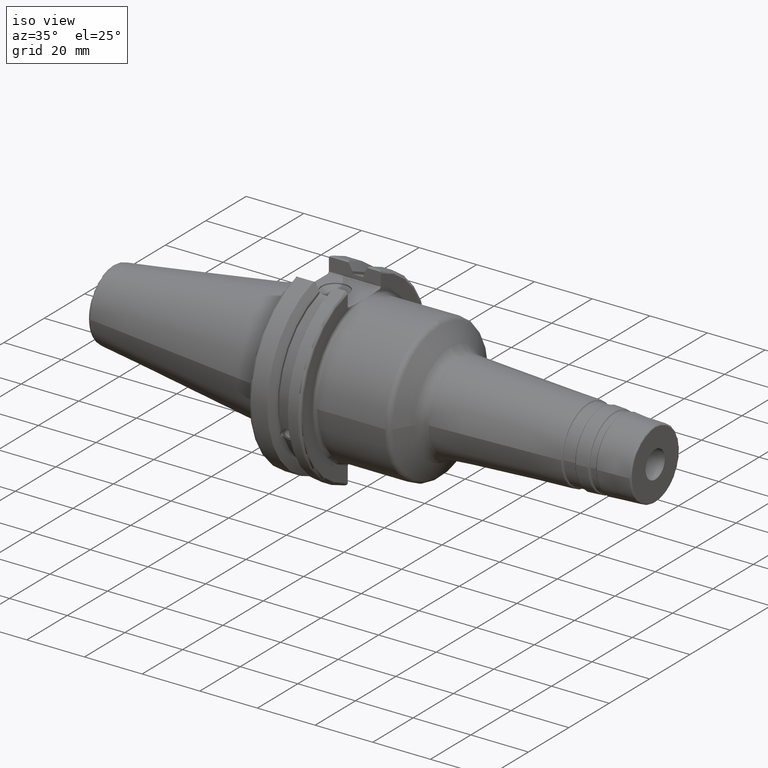
[diagram: clean part render]
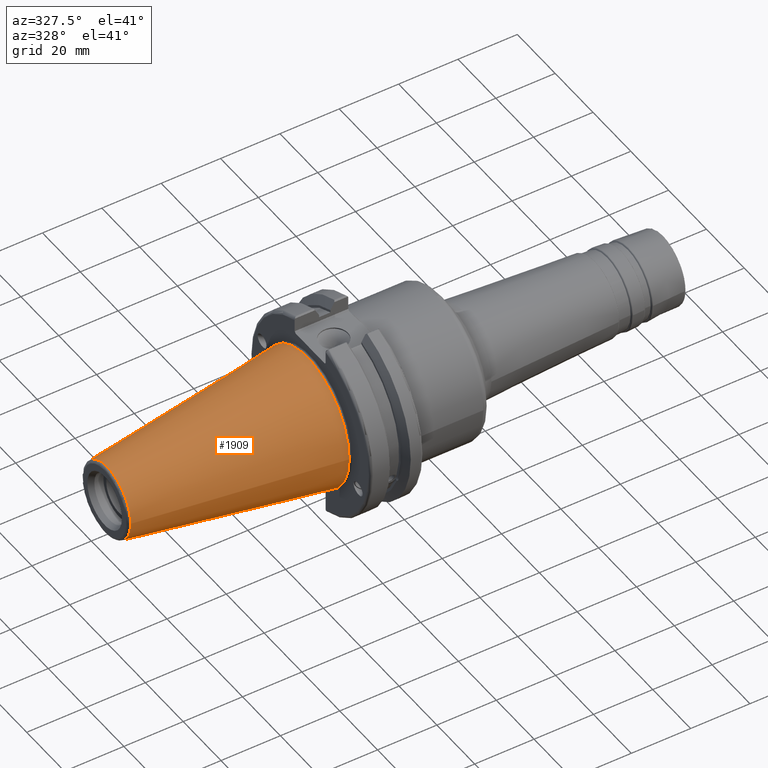
[diagram: tour spotlight — one face highlighted and labeled with its STEP entity id]
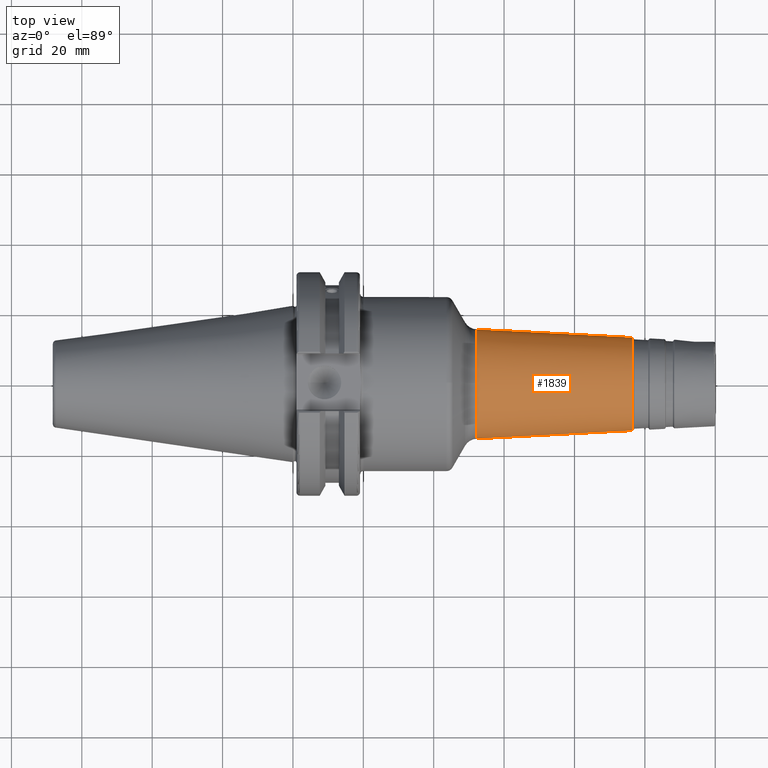
[diagram: tour spotlight — one face highlighted and labeled with its STEP entity id]
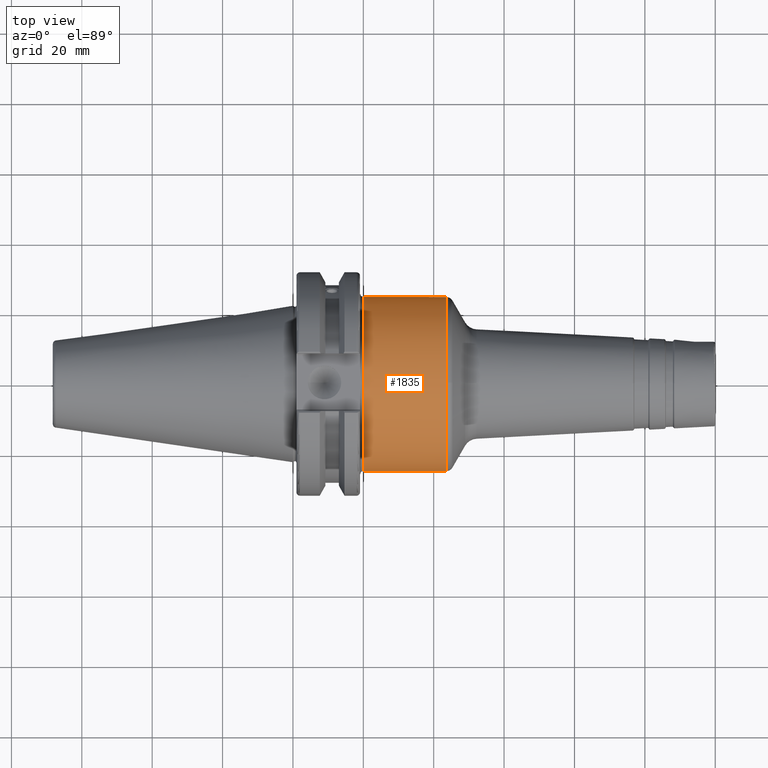
[diagram: tour spotlight — one face highlighted and labeled with its STEP entity id]
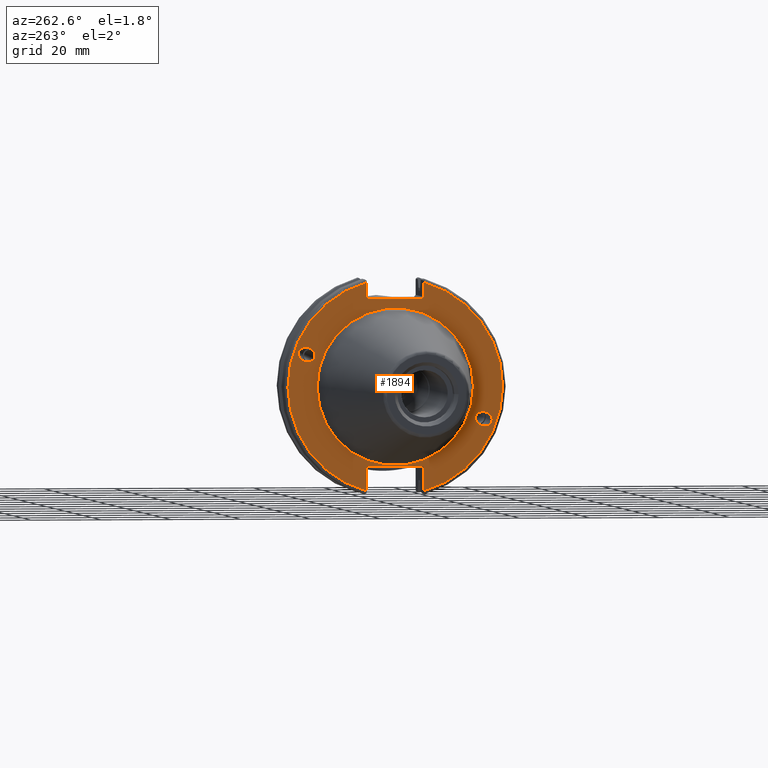
[diagram: tour spotlight — one face highlighted and labeled with its STEP entity id]
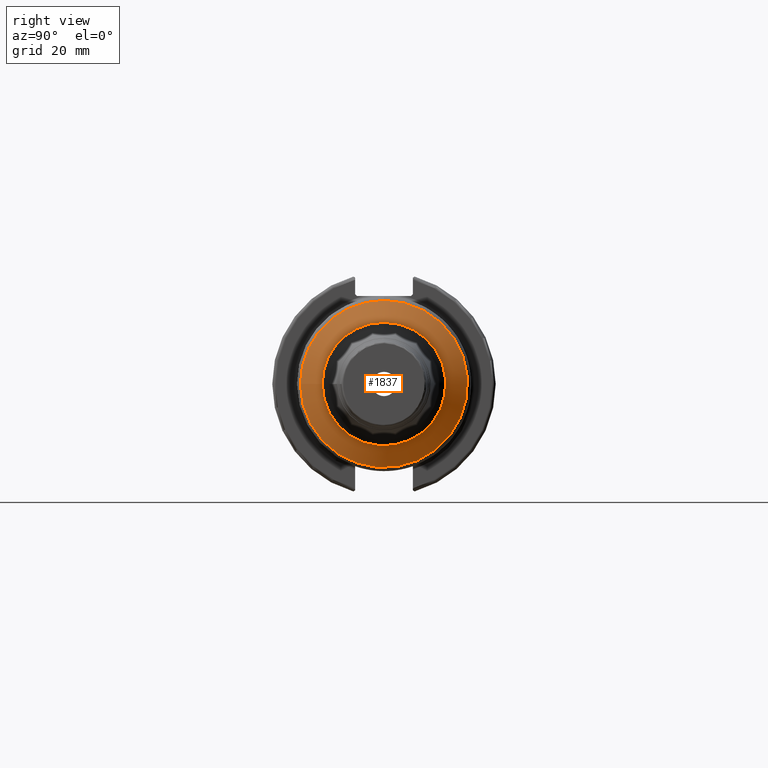
[diagram: tour spotlight — one face highlighted and labeled with its STEP entity id]
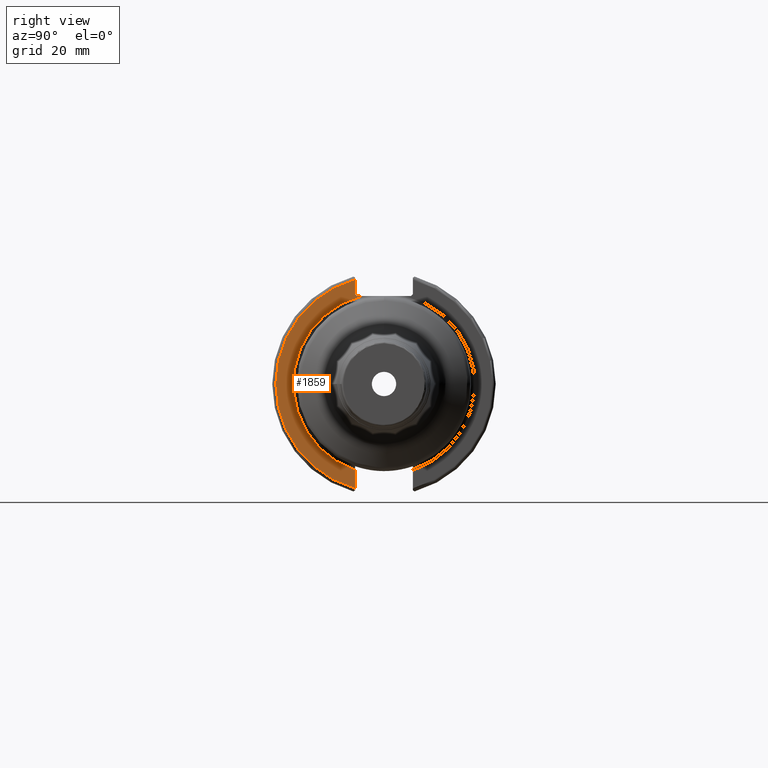
[diagram: tour spotlight — one face highlighted and labeled with its STEP entity id]
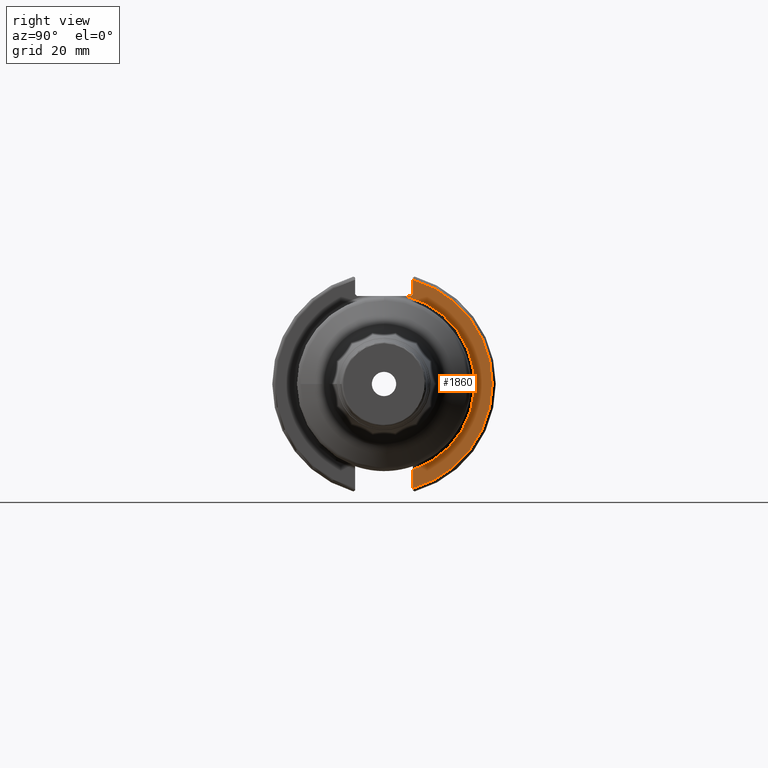
[diagram: tour spotlight — one face highlighted and labeled with its STEP entity id]
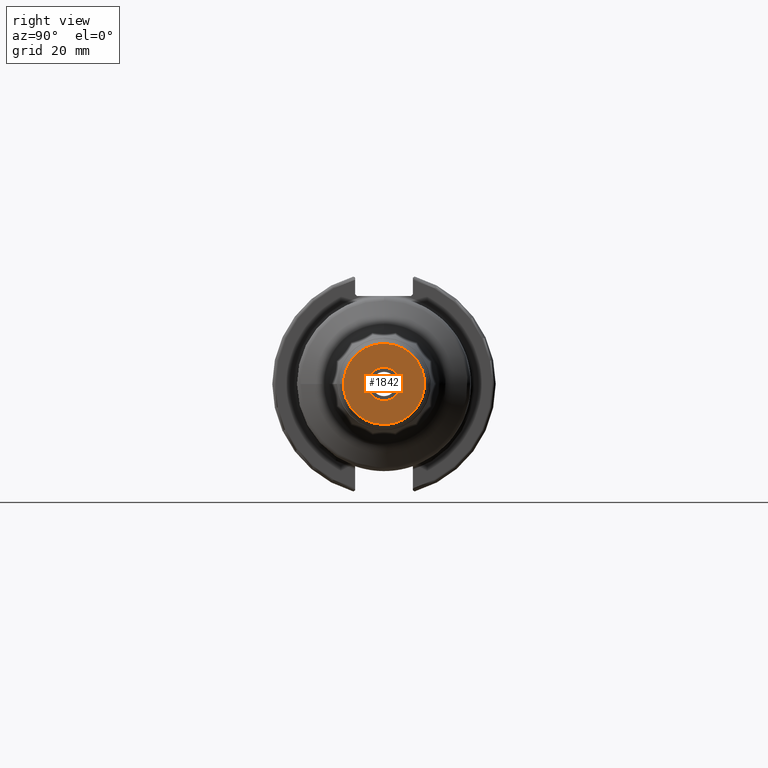
[diagram: tour spotlight — one face highlighted and labeled with its STEP entity id]
A machine part: a face-by-face anatomy tour. The part has 107 B-rep faces; the first image is the clean iso view, then the 8 largest visible faces are spotlighted one at a time (largest first), each with its STEP entity span.

Face 1 — auxiliary view, entity #1909. In plain terms, the highlighted conical surface has half-angle 8.297 deg.
Definition (entity closure, byte-faithful):
#264=FACE_OUTER_BOUND('',#384,.T.);
#384=EDGE_LOOP('',(#1681,#1682,#1683,#1684,#1685));
#496=LINE('',#3722,#594);
#594=VECTOR('',#2720,17.2484375);
#717=CIRCLE('',#2164,12.3966635780937);
#718=CIRCLE('',#2165,12.3966635780937);
#722=CIRCLE('',#2171,22.225);
#915=VERTEX_POINT('',#3709);
#916=VERTEX_POINT('',#3710);
#919=VERTEX_POINT('',#3720);
#1186=EDGE_CURVE('',#915,#916,#717,.T.);
#1187=EDGE_CURVE('',#916,#915,#718,.T.);
#1191=EDGE_CURVE('',#919,#919,#722,.T.);
#1192=EDGE_CURVE('',#919,#916,#496,.T.);
#1681=ORIENTED_EDGE('',*,*,#1191,.F.);
#1682=ORIENTED_EDGE('',*,*,#1192,.T.);
#1683=ORIENTED_EDGE('',*,*,#1186,.F.);
#1684=ORIENTED_EDGE('',*,*,#1187,.F.);
#1685=ORIENTED_EDGE('',*,*,#1192,.F.);
#1823=CONICAL_SURFACE('',#2170,17.2484375,0.144812498238939);
#1909=ADVANCED_FACE('',(#264),#1823,.T.);
#2164=AXIS2_PLACEMENT_3D('',#3711,#2704,#2705);
#2165=AXIS2_PLACEMENT_3D('',#3712,#2706,#2707);
#2170=AXIS2_PLACEMENT_3D('',#3719,#2716,#2717);
#2171=AXIS2_PLACEMENT_3D('',#3721,#2718,#2719);
#2704=DIRECTION('center_axis',(-1.,0.,0.));
#2705=DIRECTION('ref_axis',(0.,-1.,3.06161699786838E-17));
#2706=DIRECTION('center_axis',(-1.,0.,0.));
#2707=DIRECTION('ref_axis',(0.,-1.,3.06161699786838E-17));
#2716=DIRECTION('center_axis',(1.,0.,0.));
#2717=DIRECTION('ref_axis',(0.,1.,0.));
#2718=DIRECTION('center_axis',(1.,0.,0.));
#2719=DIRECTION('ref_axis',(0.,0.,-1.));
#2720=DIRECTION('',(-0.989532981063282,0.144306893071729,1.76724974695192E-17));
#3709=CARTESIAN_POINT('',(-67.3943068930717,-1.5181534371019E-15,12.3966635780937));
#3710=CARTESIAN_POINT('',(-67.3943068930718,-12.3966635780937,-1.5181534371019E-15));
#3711=CARTESIAN_POINT('Origin',(-67.3943068930717,0.,-1.89769179637738E-15));
#3712=CARTESIAN_POINT('Origin',(-67.3943068930717,0.,-1.89769179637738E-15));
#3719=CARTESIAN_POINT('Origin',(-34.125,0.,0.));
#3720=CARTESIAN_POINT('',(0.,-22.225,-2.72177751110499E-15));
#3721=CARTESIAN_POINT('Origin',(0.,0.,0.));
#3722=CARTESIAN_POINT('',(-34.125,-17.2484375,-2.11232437746682E-15));

Face 2 — top view, entity #1839. In plain terms, the highlighted conical surface has half-angle 3 deg.
Definition (entity closure, byte-faithful):
#194=FACE_OUTER_BOUND('',#303,.T.);
#303=EDGE_LOOP('',(#1275,#1276,#1277,#1278,#1279,#1280));
#422=LINE('',#2967,#520);
#520=VECTOR('',#2284,14.4434350517363);
#627=CIRCLE('',#1987,15.5548801268603);
#628=CIRCLE('',#1988,15.5548801268603);
#629=CIRCLE('',#1990,13.2304120250298);
#630=CIRCLE('',#1991,13.2304120250298);
#756=VERTEX_POINT('',#2958);
#757=VERTEX_POINT('',#2960);
#758=VERTEX_POINT('',#2964);
#759=VERTEX_POINT('',#2965);
#959=EDGE_CURVE('',#756,#757,#627,.T.);
#960=EDGE_CURVE('',#757,#756,#628,.T.);
#961=EDGE_CURVE('',#758,#759,#629,.T.);
#962=EDGE_CURVE('',#758,#757,#422,.T.);
#963=EDGE_CURVE('',#759,#758,#630,.T.);
#1275=ORIENTED_EDGE('',*,*,#961,.F.);
#1276=ORIENTED_EDGE('',*,*,#962,.T.);
#1277=ORIENTED_EDGE('',*,*,#959,.F.);
#1278=ORIENTED_EDGE('',*,*,#960,.F.);
#1279=ORIENTED_EDGE('',*,*,#962,.F.);
#1280=ORIENTED_EDGE('',*,*,#963,.F.);
#1809=CONICAL_SURFACE('',#1989,14.4434350517363,0.0523598775598296);
#1839=ADVANCED_FACE('',(#194),#1809,.T.);
#1987=AXIS2_PLACEMENT_3D('',#2961,#2276,#2277);
#1988=AXIS2_PLACEMENT_3D('',#2962,#2278,#2279);
#1989=AXIS2_PLACEMENT_3D('',#2963,#2280,#2281);
#1990=AXIS2_PLACEMENT_3D('',#2966,#2282,#2283);
#1991=AXIS2_PLACEMENT_3D('',#2968,#2285,#2286);
#2276=DIRECTION('center_axis',(-1.,0.,0.));
#2277=DIRECTION('ref_axis',(0.,-1.,3.06161699786838E-17));
#2278=DIRECTION('center_axis',(-1.,0.,0.));
#2279=DIRECTION('ref_axis',(0.,-1.,3.06161699786838E-17));
#2280=DIRECTION('center_axis',(-1.,0.,0.));
#2281=DIRECTION('ref_axis',(0.,1.,0.));
#2282=DIRECTION('center_axis',(1.,0.,0.));
#2283=DIRECTION('ref_axis',(0.,-1.,3.06161699786838E-17));
#2284=DIRECTION('',(-0.998629534754574,-0.0523359562429436,-6.40930612932368E-18));
#2285=DIRECTION('center_axis',(1.,0.,0.));
#2286=DIRECTION('ref_axis',(0.,-1.,3.06161699786838E-17));
#2958=CARTESIAN_POINT('',(52.1688463908891,-1.90492341584803E-15,15.5548801268603));
#2960=CARTESIAN_POINT('',(52.1688463908891,-15.5548801268603,-1.90492341584803E-15));
#2961=CARTESIAN_POINT('Origin',(52.1688463908891,0.,-2.38115426981004E-15));
#2962=CARTESIAN_POINT('Origin',(52.1688463908891,0.,-2.38115426981004E-15));
#2963=CARTESIAN_POINT('Origin',(73.3764817902328,0.,0.));
#2964=CARTESIAN_POINT('',(96.522339968181,-13.2304120250298,-1.62025817378535E-15));
#2965=CARTESIAN_POINT('',(96.522339968181,-1.62025817378534E-15,13.2304120250298));
#2966=CARTESIAN_POINT('Origin',(96.522339968181,0.,-2.02532271723168E-15));
#2967=CARTESIAN_POINT('',(73.3764817902328,-14.4434350517363,-1.76881065048016E-15));
#2968=CARTESIAN_POINT('Origin',(96.522339968181,0.,-2.02532271723168E-15));

Face 3 — top view, entity #1835. In plain terms, the highlighted cylindrical surface (bore or boss wall) has radius 24.75 mm, axis along (1, 0, 0).
Definition (entity closure, byte-faithful):
#122=B_SPLINE_CURVE_WITH_KNOTS('',3,(#2913,#2914,#2915,#2916,#2917,#2918,
#2919,#2920,#2921,#2922,#2923,#2924,#2925,#2926,#2927,#2928,#2929,#2930),
 .UNSPECIFIED.,.F.,.F.,(4,2,2,2,2,2,2,2,4),(-2.48845986202559,-2.17733241913027,
-1.86620497623495,-1.55521745362387,-1.24422993101279,-0.933242408401712,
-0.622254885790633,-0.311127442895316,0.),.UNSPECIFIED.);
#158=CYLINDRICAL_SURFACE('',#1973,24.75);
#190=FACE_OUTER_BOUND('',#299,.T.);
#299=EDGE_LOOP('',(#1250,#1251,#1252,#1253,#1254,#1255,#1256));
#420=LINE('',#2941,#518);
#518=VECTOR('',#2250,24.75);
#617=CIRCLE('',#1974,24.75);
#618=CIRCLE('',#1975,24.75);
#619=CIRCLE('',#1976,24.75);
#620=CIRCLE('',#1977,24.75);
#745=VERTEX_POINT('',#2911);
#746=VERTEX_POINT('',#2912);
#749=VERTEX_POINT('',#2937);
#750=VERTEX_POINT('',#2938);
#751=VERTEX_POINT('',#2940);
#943=EDGE_CURVE('',#745,#746,#122,.T.);
#947=EDGE_CURVE('',#749,#750,#617,.T.);
#948=EDGE_CURVE('',#749,#751,#420,.T.);
#949=EDGE_CURVE('',#745,#751,#618,.T.);
#950=EDGE_CURVE('',#751,#746,#619,.T.);
#951=EDGE_CURVE('',#750,#749,#620,.T.);
#1250=ORIENTED_EDGE('',*,*,#947,.F.);
#1251=ORIENTED_EDGE('',*,*,#948,.T.);
#1252=ORIENTED_EDGE('',*,*,#949,.F.);
#1253=ORIENTED_EDGE('',*,*,#943,.T.);
#1254=ORIENTED_EDGE('',*,*,#950,.F.);
#1255=ORIENTED_EDGE('',*,*,#948,.F.);
#1256=ORIENTED_EDGE('',*,*,#951,.F.);
#1835=ADVANCED_FACE('',(#190),#158,.T.);
#1973=AXIS2_PLACEMENT_3D('',#2936,#2246,#2247);
#1974=AXIS2_PLACEMENT_3D('',#2939,#2248,#2249);
#1975=AXIS2_PLACEMENT_3D('',#2942,#2251,#2252);
#1976=AXIS2_PLACEMENT_3D('',#2943,#2253,#2254);
#1977=AXIS2_PLACEMENT_3D('',#2944,#2255,#2256);
#2246=DIRECTION('center_axis',(1.,0.,0.));
#2247=DIRECTION('ref_axis',(0.,1.,0.));
#2248=DIRECTION('center_axis',(1.,0.,0.));
#2249=DIRECTION('ref_axis',(0.,-1.,1.83697019872103E-16));
#2250=DIRECTION('',(-1.,0.,0.));
#2251=DIRECTION('center_axis',(-1.,0.,0.));
#2252=DIRECTION('ref_axis',(0.,6.12323399573677E-17,1.));
#2253=DIRECTION('center_axis',(-1.,0.,0.));
#2254=DIRECTION('ref_axis',(0.,6.12323399573677E-17,1.));
#2255=DIRECTION('center_axis',(1.,0.,0.));
#2256=DIRECTION('ref_axis',(0.,-1.,1.83697019872103E-16));
#2911=CARTESIAN_POINT('',(20.05,-8.19,-23.3556502799644));
#2912=CARTESIAN_POINT('',(20.05,8.18999999999999,-23.3556502799644));
#2913=CARTESIAN_POINT('Ctrl Pts',(20.05,-8.19,-23.3556502799644));
#2914=CARTESIAN_POINT('Ctrl Pts',(21.0870914763177,-8.19,-23.3556502799644));
#2915=CARTESIAN_POINT('Ctrl Pts',(22.1874172494719,-7.98112852617488,-23.4319820145953));
#2916=CARTESIAN_POINT('Ctrl Pts',(24.2026226557734,-7.14301766428651,-23.7009173446597));
#2917=CARTESIAN_POINT('Ctrl Pts',(25.1182638848105,-6.51414519102515,-23.8889373554493));
#2918=CARTESIAN_POINT('Ctrl Pts',(26.563820070037,-5.06858900579863,-24.2368381566145));
#2919=CARTESIAN_POINT('Ctrl Pts',(27.1929429534371,-4.15281808103606,-24.420258379043));
#2920=CARTESIAN_POINT('Ctrl Pts',(28.0312404144778,-2.13713243178097,-24.6784841969774));
#2921=CARTESIAN_POINT('Ctrl Pts',(28.24,-1.03662507537027,-24.75));
#2922=CARTESIAN_POINT('Ctrl Pts',(28.24,1.03662507537027,-24.75));
#2923=CARTESIAN_POINT('Ctrl Pts',(28.0312404144778,2.13713243178098,-24.6784841969774));
#2924=CARTESIAN_POINT('Ctrl Pts',(27.1929429534371,4.15281808103607,-24.420258379043));
#2925=CARTESIAN_POINT('Ctrl Pts',(26.563820070037,5.06858900579863,-24.2368381566145));
#2926=CARTESIAN_POINT('Ctrl Pts',(25.1182638848105,6.51414519102515,-23.8889373554493));
#2927=CARTESIAN_POINT('Ctrl Pts',(24.2026226557734,7.14301766428652,-23.7009173446597));
#2928=CARTESIAN_POINT('Ctrl Pts',(22.1874172494719,7.98112852617489,-23.4319820145953));
#2929=CARTESIAN_POINT('Ctrl Pts',(21.0870914763177,8.19,-23.3556502799644));
#2930=CARTESIAN_POINT('Ctrl Pts',(20.05,8.19,-23.3556502799644));
#2936=CARTESIAN_POINT('Origin',(31.9034096256004,0.,0.));
#2937=CARTESIAN_POINT('',(43.6021187128216,-24.75,-3.0310008278897E-15));
#2938=CARTESIAN_POINT('',(43.6021187128216,-3.0310008278897E-15,24.75));
#2939=CARTESIAN_POINT('Origin',(43.6021187128216,0.,0.));
#2940=CARTESIAN_POINT('',(20.05,-24.75,-3.0310008278897E-15));
#2941=CARTESIAN_POINT('',(31.9034096256004,-24.75,-3.0310008278897E-15));
#2942=CARTESIAN_POINT('Origin',(20.05,0.,0.));
#2943=CARTESIAN_POINT('Origin',(20.05,0.,0.));
#2944=CARTESIAN_POINT('Origin',(43.6021187128216,0.,0.));

Face 4 — auxiliary view, entity #1894. In plain terms, the highlighted planar face has unit normal (-1, 0, 0).
Definition (entity closure, byte-faithful):
#39=ELLIPSE('',#2090,2.4415491775229,1.99999999999999);
#48=ELLIPSE('',#2134,2.4415491775229,1.99999999999999);
#62=PLANE('',#2143);
#112=FACE_BOUND('',#366,.T.);
#113=FACE_BOUND('',#367,.T.);
#114=FACE_BOUND('',#368,.T.);
#249=FACE_OUTER_BOUND('',#365,.T.);
#365=EDGE_LOOP('',(#1577,#1578,#1579,#1580,#1581,#1582,#1583,#1584,#1585,
#1586));
#366=EDGE_LOOP('',(#1587));
#367=EDGE_LOOP('',(#1588));
#368=EDGE_LOOP('',(#1589));
#469=LINE('',#3496,#567);
#470=LINE('',#3500,#568);
#471=LINE('',#3502,#569);
#472=LINE('',#3504,#570);
#473=LINE('',#3506,#571);
#474=LINE('',#3508,#572);
#475=LINE('',#3512,#573);
#476=LINE('',#3513,#574);
#567=VECTOR('',#2637,10.);
#568=VECTOR('',#2640,10.);
#569=VECTOR('',#2641,10.);
#570=VECTOR('',#2642,10.);
#571=VECTOR('',#2643,10.);
#572=VECTOR('',#2644,10.);
#573=VECTOR('',#2647,10.);
#574=VECTOR('',#2648,10.);
#707=CIRCLE('',#2140,22.3960257175388);
#710=CIRCLE('',#2144,30.75);
#711=CIRCLE('',#2145,30.75);
#831=VERTEX_POINT('',#3273);
#872=VERTEX_POINT('',#3476);
#875=VERTEX_POINT('',#3488);
#877=VERTEX_POINT('',#3494);
#878=VERTEX_POINT('',#3495);
#879=VERTEX_POINT('',#3497);
#880=VERTEX_POINT('',#3499);
#881=VERTEX_POINT('',#3501);
#882=VERTEX_POINT('',#3503);
#883=VERTEX_POINT('',#3505);
#884=VERTEX_POINT('',#3507);
#885=VERTEX_POINT('',#3509);
#886=VERTEX_POINT('',#3511);
#1065=EDGE_CURVE('',#831,#831,#39,.T.);
#1122=EDGE_CURVE('',#872,#872,#48,.T.);
#1127=EDGE_CURVE('',#875,#875,#707,.T.);
#1130=EDGE_CURVE('',#877,#878,#469,.T.);
#1131=EDGE_CURVE('',#879,#878,#710,.T.);
#1132=EDGE_CURVE('',#879,#880,#470,.T.);
#1133=EDGE_CURVE('',#881,#880,#471,.T.);
#1134=EDGE_CURVE('',#881,#882,#472,.T.);
#1135=EDGE_CURVE('',#883,#882,#473,.T.);
#1136=EDGE_CURVE('',#883,#884,#474,.T.);
#1137=EDGE_CURVE('',#885,#884,#711,.T.);
#1138=EDGE_CURVE('',#885,#886,#475,.T.);
#1139=EDGE_CURVE('',#886,#877,#476,.T.);
#1577=ORIENTED_EDGE('',*,*,#1130,.T.);
#1578=ORIENTED_EDGE('',*,*,#1131,.F.);
#1579=ORIENTED_EDGE('',*,*,#1132,.T.);
#1580=ORIENTED_EDGE('',*,*,#1133,.F.);
#1581=ORIENTED_EDGE('',*,*,#1134,.T.);
#1582=ORIENTED_EDGE('',*,*,#1135,.F.);
#1583=ORIENTED_EDGE('',*,*,#1136,.T.);
#1584=ORIENTED_EDGE('',*,*,#1137,.F.);
#1585=ORIENTED_EDGE('',*,*,#1138,.T.);
#1586=ORIENTED_EDGE('',*,*,#1139,.T.);
#1587=ORIENTED_EDGE('',*,*,#1065,.T.);
#1588=ORIENTED_EDGE('',*,*,#1122,.T.);
#1589=ORIENTED_EDGE('',*,*,#1127,.F.);
#1894=ADVANCED_FACE('',(#249,#112,#113,#114),#62,.T.);
#2090=AXIS2_PLACEMENT_3D('',#3275,#2511,#2512);
#2134=AXIS2_PLACEMENT_3D('',#3478,#2615,#2616);
#2140=AXIS2_PLACEMENT_3D('',#3489,#2629,#2630);
#2143=AXIS2_PLACEMENT_3D('',#3493,#2635,#2636);
#2144=AXIS2_PLACEMENT_3D('',#3498,#2638,#2639);
#2145=AXIS2_PLACEMENT_3D('',#3510,#2645,#2646);
#2511=DIRECTION('center_axis',(1.,0.,0.));
#2512=DIRECTION('ref_axis',(0.,-0.939692620785908,-0.342020143325669));
#2615=DIRECTION('center_axis',(1.,0.,0.));
#2616=DIRECTION('ref_axis',(0.,0.939692620785908,0.342020143325669));
#2629=DIRECTION('center_axis',(-1.,0.,0.));
#2630=DIRECTION('ref_axis',(0.,1.,-1.83190169812394E-16));
#2635=DIRECTION('center_axis',(-1.,0.,0.));
#2636=DIRECTION('ref_axis',(0.,0.,1.));
#2637=DIRECTION('',(0.,0.,-1.));
#2638=DIRECTION('center_axis',(1.,0.,0.));
#2639=DIRECTION('ref_axis',(0.,-1.,1.60812264967664E-16));
#2640=DIRECTION('',(0.,0.,-1.));
#2641=DIRECTION('',(0.,-0.70710678118655,0.707106781186545));
#2642=DIRECTION('',(0.,1.,0.));
#2643=DIRECTION('',(0.,-0.707106781186549,-0.707106781186546));
#2644=DIRECTION('',(0.,0.,1.));
#2645=DIRECTION('center_axis',(1.,0.,0.));
#2646=DIRECTION('ref_axis',(0.,1.,1.60812264967664E-16));
#2647=DIRECTION('',(0.,0.,1.));
#2648=DIRECTION('',(0.,-1.,0.));
#3273=CARTESIAN_POINT('',(0.999999999999999,-23.0773950158154,-8.39948487016));
#3275=CARTESIAN_POINT('Origin',(0.999999999999999,-25.3717007612195,-9.23454386979305));
#3476=CARTESIAN_POINT('',(0.999999999999999,23.0773950158154,8.39948487016001));
#3478=CARTESIAN_POINT('Origin',(0.999999999999999,25.3717007612195,9.23454386979306));
#3488=CARTESIAN_POINT('',(0.999999999999999,-22.3960257175388,6.84545387517925E-15));
#3489=CARTESIAN_POINT('Origin',(0.999999999999999,0.,0.));
#3493=CARTESIAN_POINT('Origin',(0.999999999999999,31.75,0.));
#3494=CARTESIAN_POINT('',(0.999999999999999,-8.19,-22.6));
#3495=CARTESIAN_POINT('',(0.999999999999999,-8.19,-29.6392712461019));
#3496=CARTESIAN_POINT('',(0.999999999999999,-8.19,-11.3));
#3497=CARTESIAN_POINT('',(0.999999999999999,-8.18999999999999,29.6392712461019));
#3498=CARTESIAN_POINT('Origin',(0.999999999999999,0.,0.));
#3499=CARTESIAN_POINT('',(0.999999999999999,-8.18999999999999,25.5));
#3500=CARTESIAN_POINT('',(0.999999999999999,-8.18999999999999,12.5));
#3501=CARTESIAN_POINT('',(0.999999999999999,-7.68999999999999,25.));
#3502=CARTESIAN_POINT('',(0.999999999999999,8.29500000000007,9.01500000000004));
#3503=CARTESIAN_POINT('',(0.999999999999999,7.69,25.));
#3504=CARTESIAN_POINT('',(0.999999999999999,15.875,25.));
#3505=CARTESIAN_POINT('',(0.999999999999999,8.19,25.5));
#3506=CARTESIAN_POINT('',(0.999999999999998,7.58000000000002,24.89));
#3507=CARTESIAN_POINT('',(0.999999999999999,8.19,29.6392712461019));
#3508=CARTESIAN_POINT('',(0.999999999999999,8.19,12.5));
#3509=CARTESIAN_POINT('',(0.999999999999999,8.18999999999999,-29.6392712461019));
#3510=CARTESIAN_POINT('Origin',(0.999999999999999,0.,0.));
#3511=CARTESIAN_POINT('',(0.999999999999999,8.19000000000001,-22.6));
#3512=CARTESIAN_POINT('',(0.999999999999999,8.19,-11.3));
#3513=CARTESIAN_POINT('',(0.999999999999999,15.875,-22.6));

Face 5 — right view, entity #1837. In plain terms, the highlighted conical surface has half-angle 60 deg.
Definition (entity closure, byte-faithful):
#192=FACE_OUTER_BOUND('',#301,.T.);
#301=EDGE_LOOP('',(#1263,#1264,#1265,#1266,#1267,#1268));
#421=LINE('',#2955,#519);
#519=VECTOR('',#2269,20.2092722749064);
#621=CIRCLE('',#1979,23.75);
#622=CIRCLE('',#1980,23.75);
#624=CIRCLE('',#1983,17.5493982658786);
#625=CIRCLE('',#1984,17.5493982658786);
#752=VERTEX_POINT('',#2946);
#753=VERTEX_POINT('',#2947);
#754=VERTEX_POINT('',#2952);
#755=VERTEX_POINT('',#2953);
#952=EDGE_CURVE('',#752,#753,#621,.T.);
#953=EDGE_CURVE('',#753,#752,#622,.T.);
#955=EDGE_CURVE('',#754,#755,#624,.T.);
#956=EDGE_CURVE('',#754,#753,#421,.T.);
#957=EDGE_CURVE('',#755,#754,#625,.T.);
#1263=ORIENTED_EDGE('',*,*,#955,.F.);
#1264=ORIENTED_EDGE('',*,*,#956,.T.);
#1265=ORIENTED_EDGE('',*,*,#952,.F.);
#1266=ORIENTED_EDGE('',*,*,#953,.F.);
#1267=ORIENTED_EDGE('',*,*,#956,.F.);
#1268=ORIENTED_EDGE('',*,*,#957,.F.);
#1808=CONICAL_SURFACE('',#1982,20.2092722749064,1.0471975511966);
#1837=ADVANCED_FACE('',(#192),#1808,.T.);
#1979=AXIS2_PLACEMENT_3D('',#2948,#2259,#2260);
#1980=AXIS2_PLACEMENT_3D('',#2949,#2261,#2262);
#1982=AXIS2_PLACEMENT_3D('',#2951,#2265,#2266);
#1983=AXIS2_PLACEMENT_3D('',#2954,#2267,#2268);
#1984=AXIS2_PLACEMENT_3D('',#2956,#2270,#2271);
#2259=DIRECTION('center_axis',(-1.,0.,0.));
#2260=DIRECTION('ref_axis',(0.,-1.,3.06161699786838E-17));
#2261=DIRECTION('center_axis',(-1.,0.,0.));
#2262=DIRECTION('ref_axis',(0.,-1.,3.06161699786838E-17));
#2265=DIRECTION('center_axis',(-1.,0.,0.));
#2266=DIRECTION('ref_axis',(0.,1.,0.));
#2267=DIRECTION('center_axis',(1.,0.,0.));
#2268=DIRECTION('ref_axis',(0.,-1.,3.06161699786838E-17));
#2269=DIRECTION('',(-0.5,-0.866025403784439,-1.06057523872491E-16));
#2270=DIRECTION('center_axis',(1.,0.,0.));
#2271=DIRECTION('ref_axis',(0.,-1.,3.06161699786838E-17));
#2946=CARTESIAN_POINT('',(45.3341695203905,-2.90853614797496E-15,23.75));
#2947=CARTESIAN_POINT('',(45.3341695203905,-23.75,-2.90853614797496E-15));
#2948=CARTESIAN_POINT('Origin',(45.3341695203905,0.,-3.6356701849687E-15));
#2949=CARTESIAN_POINT('Origin',(45.3341695203905,0.,-3.6356701849687E-15));
#2951=CARTESIAN_POINT('Origin',(47.3784096256004,0.,0.));
#2952=CARTESIAN_POINT('',(48.9140886007231,-17.5493982658786,-2.14918144132704E-15));
#2953=CARTESIAN_POINT('',(48.9140886007231,-2.14918144132704E-15,17.5493982658786));
#2954=CARTESIAN_POINT('Origin',(48.9140886007231,0.,-2.6864768016588E-15));
#2955=CARTESIAN_POINT('',(47.3784096256004,-20.2092722749064,-2.47492206045615E-15));
#2956=CARTESIAN_POINT('Origin',(48.9140886007231,0.,-2.6864768016588E-15));

Face 6 — right view, entity #1859. In plain terms, the highlighted planar face has unit normal (1, 0, 0).
Definition (entity closure, byte-faithful):
#50=PLANE('',#2056);
#214=FACE_OUTER_BOUND('',#324,.T.);
#324=EDGE_LOOP('',(#1391,#1392,#1393,#1394,#1395,#1396));
#431=LINE('',#3111,#529);
#432=LINE('',#3113,#530);
#433=LINE('',#3115,#531);
#434=LINE('',#3118,#532);
#529=VECTOR('',#2425,10.);
#530=VECTOR('',#2426,10.);
#531=VECTOR('',#2427,10.);
#532=VECTOR('',#2430,10.);
#674=CIRCLE('',#2054,25.75);
#676=CIRCLE('',#2057,30.75);
#794=VERTEX_POINT('',#3073);
#796=VERTEX_POINT('',#3085);
#798=VERTEX_POINT('',#3110);
#799=VERTEX_POINT('',#3112);
#800=VERTEX_POINT('',#3114);
#801=VERTEX_POINT('',#3116);
#1016=EDGE_CURVE('',#794,#796,#674,.T.);
#1020=EDGE_CURVE('',#794,#798,#431,.T.);
#1021=EDGE_CURVE('',#799,#798,#432,.T.);
#1022=EDGE_CURVE('',#799,#800,#433,.T.);
#1023=EDGE_CURVE('',#801,#800,#676,.T.);
#1024=EDGE_CURVE('',#801,#796,#434,.T.);
#1391=ORIENTED_EDGE('',*,*,#1016,.F.);
#1392=ORIENTED_EDGE('',*,*,#1020,.T.);
#1393=ORIENTED_EDGE('',*,*,#1021,.F.);
#1394=ORIENTED_EDGE('',*,*,#1022,.T.);
#1395=ORIENTED_EDGE('',*,*,#1023,.F.);
#1396=ORIENTED_EDGE('',*,*,#1024,.T.);
#1859=ADVANCED_FACE('',(#214),#50,.T.);
#2054=AXIS2_PLACEMENT_3D('',#3086,#2419,#2420);
#2056=AXIS2_PLACEMENT_3D('',#3109,#2423,#2424);
#2057=AXIS2_PLACEMENT_3D('',#3117,#2428,#2429);
#2419=DIRECTION('center_axis',(1.,0.,0.));
#2420=DIRECTION('ref_axis',(0.,6.12323399573677E-17,1.));
#2423=DIRECTION('center_axis',(1.,0.,0.));
#2424=DIRECTION('ref_axis',(0.,0.,-1.));
#2425=DIRECTION('',(0.,-1.,0.));
#2426=DIRECTION('',(0.,0.70710678118655,-0.707106781186545));
#2427=DIRECTION('',(0.,0.,1.));
#2428=DIRECTION('center_axis',(-1.,0.,0.));
#2429=DIRECTION('ref_axis',(0.,-1.,1.60812264967664E-16));
#2430=DIRECTION('',(0.,0.,1.));
#3073=CARTESIAN_POINT('',(19.05,-6.16948133962654,25.));
#3085=CARTESIAN_POINT('',(19.05,-8.19,-24.4128326910254));
#3086=CARTESIAN_POINT('Origin',(19.05,0.,0.));
#3109=CARTESIAN_POINT('Origin',(19.05,0.,0.));
#3110=CARTESIAN_POINT('',(19.05,-7.69,25.));
#3111=CARTESIAN_POINT('',(19.05,0.,25.));
#3112=CARTESIAN_POINT('',(19.05,-8.19,25.5));
#3113=CARTESIAN_POINT('',(19.05,0.357500000000014,16.9525));
#3114=CARTESIAN_POINT('',(19.05,-8.19,29.6392712461019));
#3115=CARTESIAN_POINT('',(19.05,-8.19,12.5));
#3116=CARTESIAN_POINT('',(19.05,-8.19,-29.6392712461019));
#3117=CARTESIAN_POINT('Origin',(19.05,0.,0.));
#3118=CARTESIAN_POINT('',(19.05,-8.19,-11.3));

Face 7 — right view, entity #1860. In plain terms, the highlighted planar face has unit normal (1, 0, 0).
Definition (entity closure, byte-faithful):
#51=PLANE('',#2058);
#215=FACE_OUTER_BOUND('',#325,.T.);
#325=EDGE_LOOP('',(#1397,#1398,#1399,#1400,#1401,#1402));
#435=LINE('',#3121,#533);
#436=LINE('',#3125,#534);
#437=LINE('',#3127,#535);
#438=LINE('',#3128,#536);
#533=VECTOR('',#2433,10.);
#534=VECTOR('',#2436,10.);
#535=VECTOR('',#2437,10.);
#536=VECTOR('',#2438,10.);
#675=CIRCLE('',#2055,25.75);
#677=CIRCLE('',#2059,30.75);
#795=VERTEX_POINT('',#3074);
#797=VERTEX_POINT('',#3097);
#802=VERTEX_POINT('',#3120);
#803=VERTEX_POINT('',#3122);
#804=VERTEX_POINT('',#3124);
#805=VERTEX_POINT('',#3126);
#1019=EDGE_CURVE('',#797,#795,#675,.T.);
#1025=EDGE_CURVE('',#797,#802,#435,.T.);
#1026=EDGE_CURVE('',#803,#802,#677,.T.);
#1027=EDGE_CURVE('',#803,#804,#436,.T.);
#1028=EDGE_CURVE('',#805,#804,#437,.T.);
#1029=EDGE_CURVE('',#805,#795,#438,.T.);
#1397=ORIENTED_EDGE('',*,*,#1019,.F.);
#1398=ORIENTED_EDGE('',*,*,#1025,.T.);
#1399=ORIENTED_EDGE('',*,*,#1026,.F.);
#1400=ORIENTED_EDGE('',*,*,#1027,.T.);
#1401=ORIENTED_EDGE('',*,*,#1028,.F.);
#1402=ORIENTED_EDGE('',*,*,#1029,.T.);
#1860=ADVANCED_FACE('',(#215),#51,.T.);
#2055=AXIS2_PLACEMENT_3D('',#3108,#2421,#2422);
#2058=AXIS2_PLACEMENT_3D('',#3119,#2431,#2432);
#2059=AXIS2_PLACEMENT_3D('',#3123,#2434,#2435);
#2421=DIRECTION('center_axis',(1.,0.,0.));
#2422=DIRECTION('ref_axis',(0.,6.12323399573677E-17,1.));
#2431=DIRECTION('center_axis',(1.,0.,0.));
#2432=DIRECTION('ref_axis',(0.,0.,-1.));
#2433=DIRECTION('',(0.,0.,-1.));
#2434=DIRECTION('center_axis',(-1.,0.,0.));
#2435=DIRECTION('ref_axis',(0.,1.,-6.12323399573677E-17));
#2436=DIRECTION('',(0.,0.,-1.));
#2437=DIRECTION('',(0.,0.707106781186549,0.707106781186546));
#2438=DIRECTION('',(0.,-1.,0.));
#3074=CARTESIAN_POINT('',(19.05,6.16948133962654,25.));
#3097=CARTESIAN_POINT('',(19.05,8.19,-24.4128326910254));
#3108=CARTESIAN_POINT('Origin',(19.05,0.,0.));
#3119=CARTESIAN_POINT('Origin',(19.05,0.,0.));
#3120=CARTESIAN_POINT('',(19.05,8.19,-29.6392712461019));
#3121=CARTESIAN_POINT('',(19.05,8.19,-11.3));
#3122=CARTESIAN_POINT('',(19.05,8.19,29.6392712461019));
#3123=CARTESIAN_POINT('Origin',(19.05,0.,0.));
#3124=CARTESIAN_POINT('',(19.05,8.19,25.5));
#3125=CARTESIAN_POINT('',(19.05,8.19,12.5));
#3126=CARTESIAN_POINT('',(19.05,7.69,25.));
#3127=CARTESIAN_POINT('',(19.05,-0.35750000000001,16.9525));
#3128=CARTESIAN_POINT('',(19.05,0.,25.));

Face 8 — right view, entity #1842. In plain terms, the highlighted planar face has unit normal (1, 0, 0).
Definition (entity closure, byte-faithful):
#49=PLANE('',#2000);
#105=FACE_BOUND('',#307,.T.);
#197=FACE_OUTER_BOUND('',#306,.T.);
#306=EDGE_LOOP('',(#1292));
#307=EDGE_LOOP('',(#1293));
#631=CIRCLE('',#1993,11.5255177166426);
#637=CIRCLE('',#2001,4.7625);
#760=VERTEX_POINT('',#2970);
#765=VERTEX_POINT('',#2984);
#964=EDGE_CURVE('',#760,#760,#631,.T.);
#971=EDGE_CURVE('',#765,#765,#637,.T.);
#1292=ORIENTED_EDGE('',*,*,#964,.F.);
#1293=ORIENTED_EDGE('',*,*,#971,.F.);
#1842=ADVANCED_FACE('',(#197,#105),#49,.T.);
#1993=AXIS2_PLACEMENT_3D('',#2971,#2289,#2290);
#2000=AXIS2_PLACEMENT_3D('',#2983,#2304,#2305);
#2001=AXIS2_PLACEMENT_3D('',#2985,#2306,#2307);
#2289=DIRECTION('center_axis',(-1.,0.,0.));
#2290=DIRECTION('ref_axis',(0.,-1.,1.83697019872103E-16));
#2304=DIRECTION('center_axis',(1.,0.,0.));
#2305=DIRECTION('ref_axis',(0.,0.,-1.));
#2306=DIRECTION('center_axis',(1.,0.,0.));
#2307=DIRECTION('ref_axis',(0.,0.,-1.));
#2970=CARTESIAN_POINT('',(120.,-1.41146883802024E-15,11.5255177166426));
#2971=CARTESIAN_POINT('Origin',(120.,0.,0.));
#2983=CARTESIAN_POINT('Origin',(120.,4.7625,0.));
#2984=CARTESIAN_POINT('',(120.,-4.7625,-5.83238038093927E-16));
#2985=CARTESIAN_POINT('Origin',(120.,0.,0.));